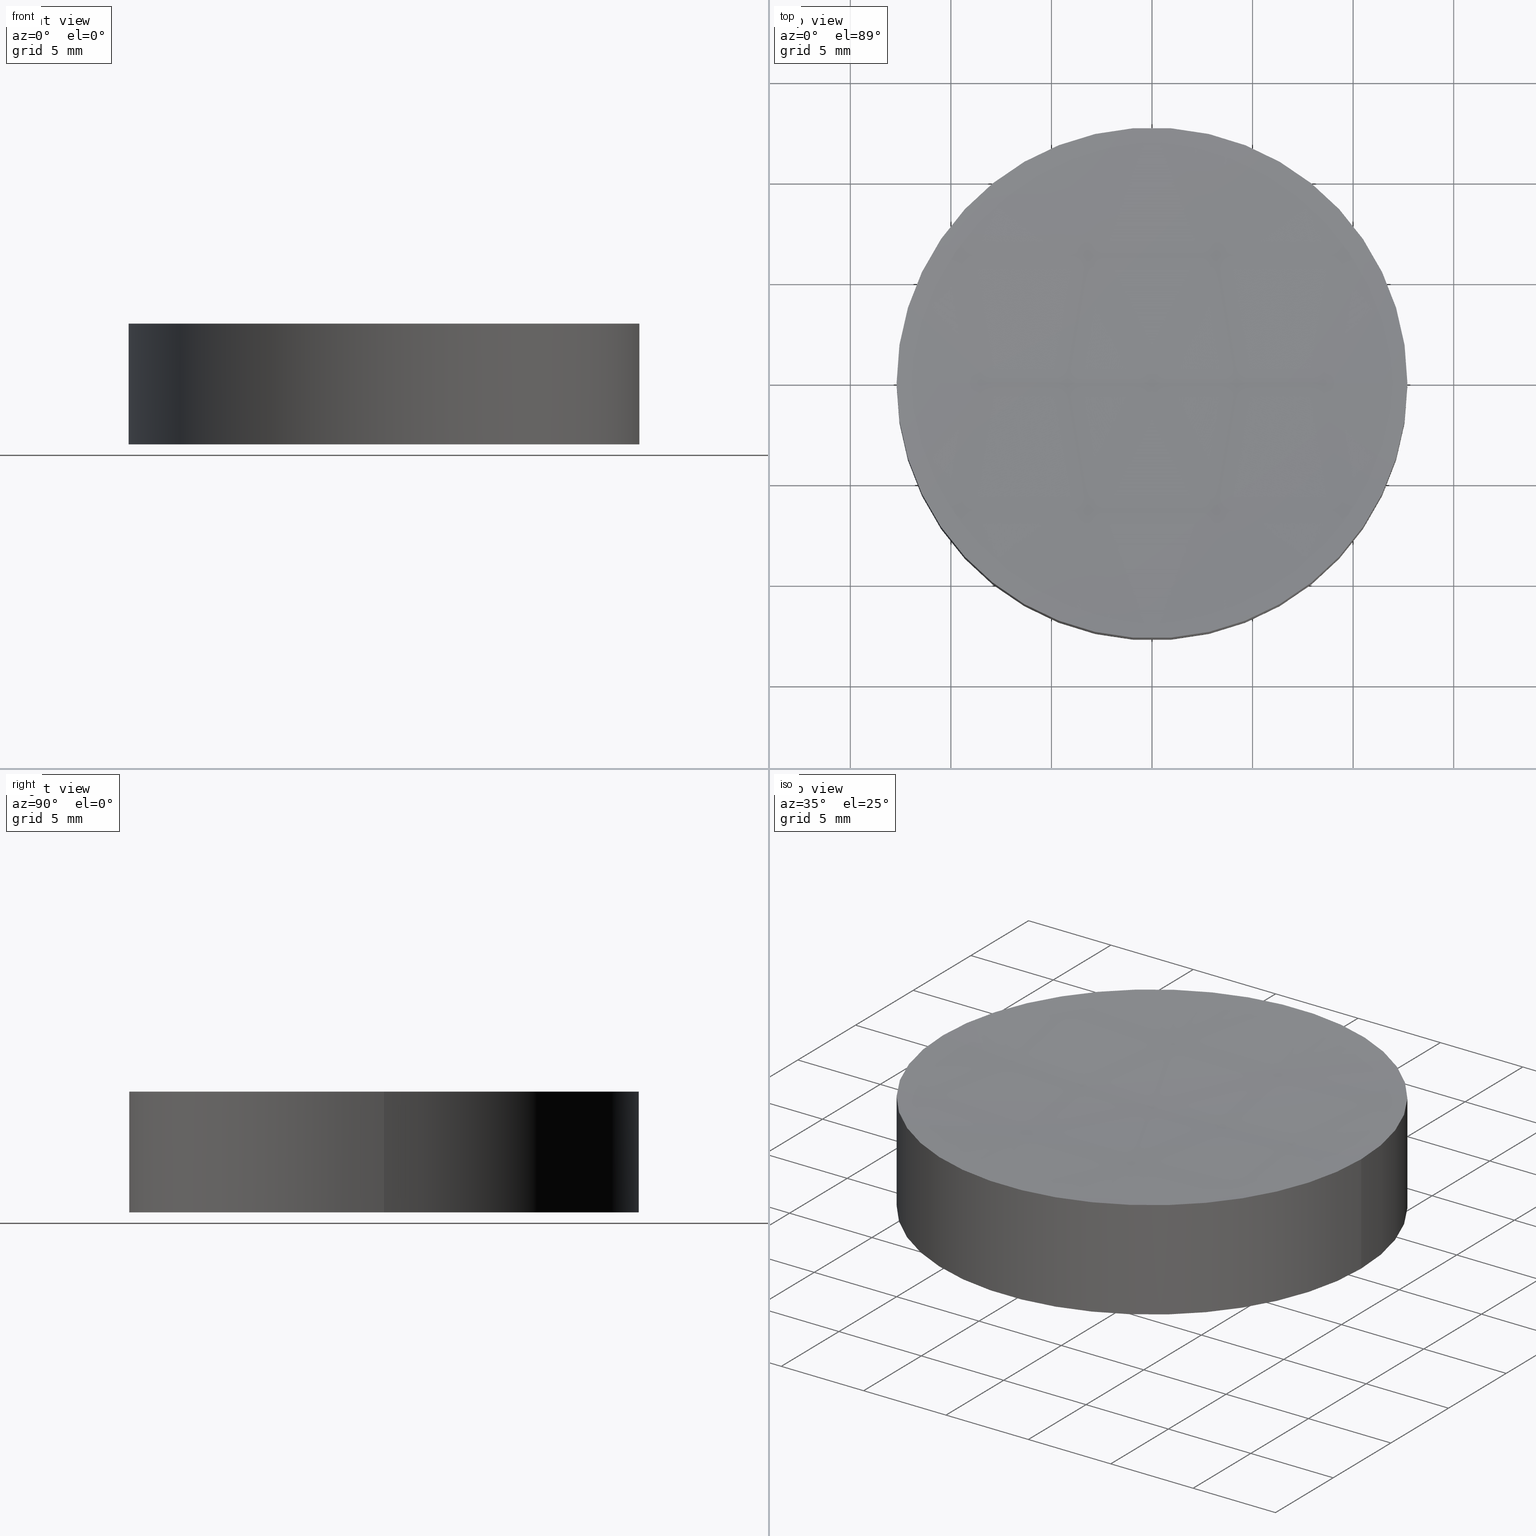
[diagram: canonical four-view strip — front | top / right | iso, engineering-drawing reading convention]
A machine part, canonical four-view strip (front | top / right | iso — engineering-drawing reading convention). The complete STEP part file that produces these views, byte-faithful:
ISO-10303-21;
HEADER;
FILE_DESCRIPTION (( 'STEP AP203' ),
    '1' );
FILE_NAME ('010-0203E_N-BK7_PCV_window.STEP',
    '2021-02-25T11:10:30',
    ( '' ),
    ( '' ),
    'SwSTEP 2.0',
    'SolidWorks 2019',
    '' );
FILE_SCHEMA (( 'CONFIG_CONTROL_DESIGN' ));
ENDSEC;

DATA;
#1 = ORIENTED_EDGE ( 'NONE', *, *, #110, .F. ) ;
#2 = AXIS2_PLACEMENT_3D ( 'NONE', #51, #128, #179 ) ;
#3 = DIRECTION ( 'NONE',  ( 0.000000000000000000, 0.000000000000000000, 1.000000000000000000 ) ) ;
#4 = PERSON_AND_ORGANIZATION_ROLE ( 'creator' ) ;
#5 = APPROVAL_PERSON_ORGANIZATION ( #43, #21, #26 ) ;
#6 = CARTESIAN_POINT ( 'NONE',  ( 3.000153270532683387E-14, 0.000000000000000000, 5.461399699052737589 ) ) ;
#7 = DATE_AND_TIME ( #149, #72 ) ;
#8 = APPROVAL_DATE_TIME ( #88, #184 ) ;
#9 = FACE_OUTER_BOUND ( 'NONE', #84, .T. ) ;
#10 = DATE_AND_TIME ( #182, #187 ) ;
#11 = DIRECTION ( 'NONE',  ( 1.000000000000000000, 0.000000000000000000, 0.000000000000000000 ) ) ;
#12 = PERSON_AND_ORGANIZATION_ROLE ( 'classification_officer' ) ;
#13 = DIRECTION ( 'NONE',  ( 1.224646799147353207E-16, -1.000000000000000000, 0.000000000000000000 ) ) ;
#14 = DESIGN_CONTEXT ( 'detailed design', #19, 'design' ) ;
#15 = EDGE_LOOP ( 'NONE', ( #80, #170, #96 ) ) ;
#16 = DIRECTION ( 'NONE',  ( 0.000000000000000000, 0.000000000000000000, 1.000000000000000000 ) ) ;
#17 = EDGE_CURVE ( 'NONE', #104, #27, #39, .T. ) ;
#18 = FACE_OUTER_BOUND ( 'NONE', #94, .T. ) ;
#19 = APPLICATION_CONTEXT ( 'configuration controlled 3d designs of mechanical parts and assemblies' ) ;
#20 = DIRECTION ( 'NONE',  ( 0.000000000000000000, 0.000000000000000000, 1.000000000000000000 ) ) ;
#21 = APPROVAL ( #29, 'UNSPECIFIED' ) ;
#22 = PERSON ( 'UNSPECIFIED', 'UNSPECIFIED', 'UNSPECIFIED', ('UNSPECIFIED'), ('UNSPECIFIED'), ('UNSPECIFIED') ) ;
#23 = SECURITY_CLASSIFICATION_LEVEL ( 'unclassified' ) ;
#24 = AXIS2_PLACEMENT_3D ( 'NONE', #162, #20, #85 ) ;
#25 = DIRECTION ( 'NONE',  ( 1.000000000000000000, 0.000000000000000000, 0.000000000000000000 ) ) ;
#26 = APPROVAL_ROLE ( '' ) ;
#27 = VERTEX_POINT ( 'NONE', #32 ) ;
#28 =( GEOMETRIC_REPRESENTATION_CONTEXT ( 3 ) GLOBAL_UNCERTAINTY_ASSIGNED_CONTEXT ( ( #55 ) ) GLOBAL_UNIT_ASSIGNED_CONTEXT ( ( #145, #52, #41 ) ) REPRESENTATION_CONTEXT ( 'NONE', 'WORKASPACE' ) );
#29 = APPROVAL_STATUS ( 'not_yet_approved' ) ;
#30 = CLOSED_SHELL ( 'NONE', ( #64, #144, #40, #177, #139 ) ) ;
#31 = DIRECTION ( 'NONE',  ( -0.000000000000000000, -0.000000000000000000, -1.000000000000000000 ) ) ;
#32 = CARTESIAN_POINT ( 'NONE',  ( 12.70000000000007923, 1.555301434917148096E-15, 6.000000000000005329 ) ) ;
#33 = APPROVAL ( #56, 'UNSPECIFIED' ) ;
#34 = EDGE_LOOP ( 'NONE', ( #1, #108, #140, #65 ) ) ;
#35 = AXIS2_PLACEMENT_3D ( 'NONE', #155, #13, #201 ) ;
#36 = APPROVAL_PERSON_ORGANIZATION ( #197, #33, #180 ) ;
#37 = AXIS2_PLACEMENT_3D ( 'NONE', #62, #136, #25 ) ;
#38 = EDGE_CURVE ( 'NONE', #27, #157, #111, .T. ) ;
#39 = CIRCLE ( 'NONE', #141, 12.70000000000005613 ) ;
#40 = ADVANCED_FACE ( 'NONE', ( #68 ), #48, .T. ) ;
#41 =( NAMED_UNIT ( * ) SI_UNIT ( $, .STERADIAN. ) SOLID_ANGLE_UNIT ( ) );
#42 = ORIENTED_EDGE ( 'NONE', *, *, #38, .F. ) ;
#43 = PERSON_AND_ORGANIZATION ( #22, #86 ) ;
#44 = VERTEX_POINT ( 'NONE', #159 ) ;
#45 = DATE_AND_TIME ( #175, #193 ) ;
#46 = DIRECTION ( 'NONE',  ( 1.000000000000000000, 0.000000000000000000, 0.000000000000000000 ) ) ;
#47 = EDGE_CURVE ( 'NONE', #104, #157, #49, .T. ) ;
#48 = CYLINDRICAL_SURFACE ( 'NONE', #132, 12.69999999999999929 ) ;
#49 = CIRCLE ( 'NONE', #35, 150.0000000000000000 ) ;
#50 = CIRCLE ( 'NONE', #195, 12.69999999999999929 ) ;
#51 = CARTESIAN_POINT ( 'NONE',  ( 2.081668171172168513E-14, 0.000000000000000000, 6.000000000000005329 ) ) ;
#52 =( NAMED_UNIT ( * ) PLANE_ANGLE_UNIT ( ) SI_UNIT ( $, .RADIAN. ) );
#53 = EDGE_CURVE ( 'NONE', #44, #158, #122, .T. ) ;
#54 = AXIS2_PLACEMENT_3D ( 'NONE', #95, #121, #16 ) ;
#55 = UNCERTAINTY_MEASURE_WITH_UNIT (LENGTH_MEASURE( 1.000000000000000082E-05 ), #145, 'distance_accuracy_value', 'NONE');
#56 = APPROVAL_STATUS ( 'not_yet_approved' ) ;
#57 = CYLINDRICAL_SURFACE ( 'NONE', #148, 12.69999999999999929 ) ;
#58 = APPROVAL_DATE_TIME ( #199, #33 ) ;
#59 = DIRECTION ( 'NONE',  ( 0.000000000000000000, -1.000000000000000000, -0.000000000000000000 ) ) ;
#60 = PERSON_AND_ORGANIZATION ( #22, #86 ) ;
#61 = CARTESIAN_POINT ( 'NONE',  ( -12.69999999999999929, 0.000000000000000000, 6.000000000000000000 ) ) ;
#62 = CARTESIAN_POINT ( 'NONE',  ( 2.081668171172168513E-14, 0.000000000000000000, 155.4613996990527198 ) ) ;
#63 = DATE_TIME_ROLE ( 'classification_date' ) ;
#64 = ADVANCED_FACE ( 'NONE', ( #18 ), #102, .F. ) ;
#65 = ORIENTED_EDGE ( 'NONE', *, *, #114, .T. ) ;
#66 = CC_DESIGN_APPROVAL ( #33, ( #160 ) ) ;
#67 = CIRCLE ( 'NONE', #2, 12.70000000000005613 ) ;
#68 = FACE_OUTER_BOUND ( 'NONE', #34, .T. ) ;
#69 = MANIFOLD_SOLID_BREP ( 'Cut-Revolve1', #30 ) ;
#70 = CC_DESIGN_DATE_AND_TIME_ASSIGNMENT ( #7, #130, ( #100 ) ) ;
#71 = CARTESIAN_POINT ( 'NONE',  ( -12.69999999999999929, 0.000000000000000000, 0.000000000000000000 ) ) ;
#72 = LOCAL_TIME ( 13, 10, 30.00000000000000000, #115 ) ;
#73 = ADVANCED_BREP_SHAPE_REPRESENTATION ( '010-0203E_N-BK7_PCV_window', ( #69, #126 ), #28 ) ;
#74 = CALENDAR_DATE ( 2021, 25, 2 ) ;
#75 = COORDINATED_UNIVERSAL_TIME_OFFSET ( 2, 0, .AHEAD. ) ;
#76 = DIRECTION ( 'NONE',  ( -0.000000000000000000, -0.000000000000000000, -1.000000000000000000 ) ) ;
#77 = PERSON_AND_ORGANIZATION_ROLE ( 'design_owner' ) ;
#78 = DIRECTION ( 'NONE',  ( -0.000000000000000000, -0.000000000000000000, -1.000000000000000000 ) ) ;
#79 = AXIS2_PLACEMENT_3D ( 'NONE', #190, #3, #174 ) ;
#80 = ORIENTED_EDGE ( 'NONE', *, *, #47, .F. ) ;
#81 = ORIENTED_EDGE ( 'NONE', *, *, #97, .F. ) ;
#82 = ORIENTED_EDGE ( 'NONE', *, *, #17, .F. ) ;
#83 = LOCAL_TIME ( 13, 10, 30.00000000000000000, #75 ) ;
#84 = EDGE_LOOP ( 'NONE', ( #106, #173, #119, #81 ) ) ;
#85 = DIRECTION ( 'NONE',  ( 1.000000000000000000, 0.000000000000000000, -0.000000000000000000 ) ) ;
#86 = ORGANIZATION ( 'UNSPECIFIED', 'UNSPECIFIED', '' ) ;
#87 = AXIS2_PLACEMENT_3D ( 'NONE', #116, #59, #181 ) ;
#88 = DATE_AND_TIME ( #74, #164 ) ;
#89 = CARTESIAN_POINT ( 'NONE',  ( 0.000000000000000000, 0.000000000000000000, 0.000000000000000000 ) ) ;
#90 = LINE ( 'NONE', #61, #107 ) ;
#91 = CARTESIAN_POINT ( 'NONE',  ( 0.000000000000000000, 0.000000000000000000, 0.000000000000000000 ) ) ;
#92 = ORIENTED_EDGE ( 'NONE', *, *, #47, .T. ) ;
#93 = SPHERICAL_SURFACE ( 'NONE', #87, 150.0000000000000000 ) ;
#94 = EDGE_LOOP ( 'NONE', ( #82, #92, #42 ) ) ;
#95 = CARTESIAN_POINT ( 'NONE',  ( 2.081668171172168513E-14, 0.000000000000000000, 155.4613996990527198 ) ) ;
#96 = ORIENTED_EDGE ( 'NONE', *, *, #38, .T. ) ;
#97 = EDGE_CURVE ( 'NONE', #104, #158, #90, .T. ) ;
#98 = CC_DESIGN_APPROVAL ( #21, ( #176 ) ) ;
#99 = PRODUCT_DEFINITION_SHAPE ( 'NONE', 'NONE',  #100 ) ;
#100 = PRODUCT_DEFINITION ( 'UNKNOWN', '', #160, #14 ) ;
#101 = CARTESIAN_POINT ( 'NONE',  ( 0.000000000000000000, 0.000000000000000000, 6.000000000000000000 ) ) ;
#102 = SPHERICAL_SURFACE ( 'NONE', #37, 150.0000000000000000 ) ;
#103 = SHAPE_DEFINITION_REPRESENTATION ( #99, #73 ) ;
#104 = VERTEX_POINT ( 'NONE', #186 ) ;
#105 = LINE ( 'NONE', #198, #178 ) ;
#106 = ORIENTED_EDGE ( 'NONE', *, *, #17, .T. ) ;
#107 = VECTOR ( 'NONE', #78, 1000.000000000000000 ) ;
#108 = ORIENTED_EDGE ( 'NONE', *, *, #171, .T. ) ;
#109 = DIRECTION ( 'NONE',  ( -1.000000000000000000, 0.000000000000000000, 0.000000000000000000 ) ) ;
#110 = EDGE_CURVE ( 'NONE', #27, #44, #105, .T. ) ;
#111 = CIRCLE ( 'NONE', #54, 150.0000000000000000 ) ;
#112 = PERSON_AND_ORGANIZATION ( #22, #86 ) ;
#113 = PERSON_AND_ORGANIZATION_ROLE ( 'design_supplier' ) ;
#114 = EDGE_CURVE ( 'NONE', #158, #44, #50, .T. ) ;
#115 = COORDINATED_UNIVERSAL_TIME_OFFSET ( 2, 0, .AHEAD. ) ;
#116 = CARTESIAN_POINT ( 'NONE',  ( 2.081668171172168513E-14, 0.000000000000000000, 155.4613996990527198 ) ) ;
#117 = PERSON_AND_ORGANIZATION ( #22, #86 ) ;
#118 = APPROVAL_STATUS ( 'not_yet_approved' ) ;
#119 = ORIENTED_EDGE ( 'NONE', *, *, #53, .T. ) ;
#120 = DIRECTION ( 'NONE',  ( 1.000000000000000000, 0.000000000000000000, 0.000000000000000000 ) ) ;
#121 = DIRECTION ( 'NONE',  ( 0.000000000000000000, 1.000000000000000000, -0.000000000000000000 ) ) ;
#122 = CIRCLE ( 'NONE', #79, 12.69999999999999929 ) ;
#123 = CC_DESIGN_PERSON_AND_ORGANIZATION_ASSIGNMENT ( #60, #77, ( #125 ) ) ;
#124 = CC_DESIGN_DATE_AND_TIME_ASSIGNMENT ( #45, #63, ( #176 ) ) ;
#125 = PRODUCT ( '010-0203E_N-BK7_PCV_window', '010-0203E_N-BK7_PCV_window', '', ( #131 ) ) ;
#126 = AXIS2_PLACEMENT_3D ( 'NONE', #91, #165, #11 ) ;
#127 = CC_DESIGN_PERSON_AND_ORGANIZATION_ASSIGNMENT ( #112, #4, ( #160 ) ) ;
#128 = DIRECTION ( 'NONE',  ( -0.000000000000000000, -0.000000000000000000, -1.000000000000000000 ) ) ;
#129 = PERSON_AND_ORGANIZATION ( #22, #86 ) ;
#130 = DATE_TIME_ROLE ( 'creation_date' ) ;
#131 = MECHANICAL_CONTEXT ( 'NONE', #142, 'mechanical' ) ;
#132 = AXIS2_PLACEMENT_3D ( 'NONE', #137, #168, #109 ) ;
#133 = DIRECTION ( 'NONE',  ( -0.000000000000000000, -0.000000000000000000, -1.000000000000000000 ) ) ;
#134 = COORDINATED_UNIVERSAL_TIME_OFFSET ( 2, 0, .AHEAD. ) ;
#135 = ORIENTED_EDGE ( 'NONE', *, *, #114, .F. ) ;
#136 = DIRECTION ( 'NONE',  ( 0.000000000000000000, -1.000000000000000000, -0.000000000000000000 ) ) ;
#137 = CARTESIAN_POINT ( 'NONE',  ( 0.000000000000000000, 0.000000000000000000, 6.000000000000000000 ) ) ;
#138 = APPLICATION_PROTOCOL_DEFINITION ( 'international standard', 'config_control_design', 1994, #19 ) ;
#139 = ADVANCED_FACE ( 'NONE', ( #172 ), #93, .F. ) ;
#140 = ORIENTED_EDGE ( 'NONE', *, *, #97, .T. ) ;
#141 = AXIS2_PLACEMENT_3D ( 'NONE', #183, #31, #46 ) ;
#142 = APPLICATION_CONTEXT ( 'configuration controlled 3d designs of mechanical parts and assemblies' ) ;
#143 = PERSON_AND_ORGANIZATION ( #22, #86 ) ;
#144 = ADVANCED_FACE ( 'NONE', ( #9 ), #57, .T. ) ;
#145 =( LENGTH_UNIT ( ) NAMED_UNIT ( * ) SI_UNIT ( .MILLI., .METRE. ) );
#146 = FACE_OUTER_BOUND ( 'NONE', #188, .T. ) ;
#147 = APPROVAL_PERSON_ORGANIZATION ( #152, #184, #167 ) ;
#148 = AXIS2_PLACEMENT_3D ( 'NONE', #101, #76, #151 ) ;
#149 = CALENDAR_DATE ( 2021, 25, 2 ) ;
#150 = CALENDAR_DATE ( 2021, 25, 2 ) ;
#151 = DIRECTION ( 'NONE',  ( -1.000000000000000000, 0.000000000000000000, 0.000000000000000000 ) ) ;
#152 = PERSON_AND_ORGANIZATION ( #22, #86 ) ;
#153 = COORDINATED_UNIVERSAL_TIME_OFFSET ( 2, 0, .AHEAD. ) ;
#154 = CC_DESIGN_SECURITY_CLASSIFICATION ( #176, ( #160 ) ) ;
#155 = CARTESIAN_POINT ( 'NONE',  ( 2.081668171172168513E-14, 0.000000000000000000, 155.4613996990527198 ) ) ;
#156 = APPLICATION_PROTOCOL_DEFINITION ( 'international standard', 'config_control_design', 1994, #142 ) ;
#157 = VERTEX_POINT ( 'NONE', #6 ) ;
#158 = VERTEX_POINT ( 'NONE', #71 ) ;
#159 = CARTESIAN_POINT ( 'NONE',  ( 12.69999999999999929, 1.555301434917138433E-15, 0.000000000000000000 ) ) ;
#160 = PRODUCT_DEFINITION_FORMATION_WITH_SPECIFIED_SOURCE ( 'ANY', '', #125, .NOT_KNOWN. ) ;
#161 = CC_DESIGN_PERSON_AND_ORGANIZATION_ASSIGNMENT ( #117, #12, ( #176 ) ) ;
#162 = CARTESIAN_POINT ( 'NONE',  ( 0.000000000000000000, 0.000000000000000000, 0.000000000000000000 ) ) ;
#163 = PLANE ( 'NONE',  #24 ) ;
#164 = LOCAL_TIME ( 13, 10, 30.00000000000000000, #153 ) ;
#165 = DIRECTION ( 'NONE',  ( 0.000000000000000000, 0.000000000000000000, 1.000000000000000000 ) ) ;
#166 = PERSON_AND_ORGANIZATION_ROLE ( 'creator' ) ;
#167 = APPROVAL_ROLE ( '' ) ;
#168 = DIRECTION ( 'NONE',  ( -0.000000000000000000, -0.000000000000000000, -1.000000000000000000 ) ) ;
#169 = COORDINATED_UNIVERSAL_TIME_OFFSET ( 2, 0, .AHEAD. ) ;
#170 = ORIENTED_EDGE ( 'NONE', *, *, #171, .F. ) ;
#171 = EDGE_CURVE ( 'NONE', #27, #104, #67, .T. ) ;
#172 = FACE_OUTER_BOUND ( 'NONE', #15, .T. ) ;
#173 = ORIENTED_EDGE ( 'NONE', *, *, #110, .T. ) ;
#174 = DIRECTION ( 'NONE',  ( 1.000000000000000000, 0.000000000000000000, 0.000000000000000000 ) ) ;
#175 = CALENDAR_DATE ( 2021, 25, 2 ) ;
#176 = SECURITY_CLASSIFICATION ( '', '', #23 ) ;
#177 = ADVANCED_FACE ( 'NONE', ( #146 ), #163, .F. ) ;
#178 = VECTOR ( 'NONE', #133, 1000.000000000000000 ) ;
#179 = DIRECTION ( 'NONE',  ( 1.000000000000000000, 0.000000000000000000, 0.000000000000000000 ) ) ;
#180 = APPROVAL_ROLE ( '' ) ;
#181 = DIRECTION ( 'NONE',  ( 1.000000000000000000, 0.000000000000000000, 0.000000000000000000 ) ) ;
#182 = CALENDAR_DATE ( 2021, 25, 2 ) ;
#183 = CARTESIAN_POINT ( 'NONE',  ( 2.081668171172168513E-14, 0.000000000000000000, 6.000000000000005329 ) ) ;
#184 = APPROVAL ( #118, 'UNSPECIFIED' ) ;
#185 = ORIENTED_EDGE ( 'NONE', *, *, #53, .F. ) ;
#186 = CARTESIAN_POINT ( 'NONE',  ( -12.70000000000003659, 0.000000000000000000, 6.000000000000005329 ) ) ;
#187 = LOCAL_TIME ( 13, 10, 30.00000000000000000, #134 ) ;
#188 = EDGE_LOOP ( 'NONE', ( #135, #185 ) ) ;
#189 = APPROVAL_DATE_TIME ( #10, #21 ) ;
#190 = CARTESIAN_POINT ( 'NONE',  ( 0.000000000000000000, 0.000000000000000000, 0.000000000000000000 ) ) ;
#191 = PRODUCT_RELATED_PRODUCT_CATEGORY ( 'detail', '', ( #125 ) ) ;
#192 = CC_DESIGN_PERSON_AND_ORGANIZATION_ASSIGNMENT ( #129, #166, ( #100 ) ) ;
#193 = LOCAL_TIME ( 13, 10, 30.00000000000000000, #169 ) ;
#194 = CC_DESIGN_APPROVAL ( #184, ( #100 ) ) ;
#195 = AXIS2_PLACEMENT_3D ( 'NONE', #89, #200, #120 ) ;
#196 = CC_DESIGN_PERSON_AND_ORGANIZATION_ASSIGNMENT ( #143, #113, ( #160 ) ) ;
#197 = PERSON_AND_ORGANIZATION ( #22, #86 ) ;
#198 = CARTESIAN_POINT ( 'NONE',  ( 12.69999999999999929, 1.555301434917138433E-15, 6.000000000000000000 ) ) ;
#199 = DATE_AND_TIME ( #150, #83 ) ;
#200 = DIRECTION ( 'NONE',  ( 0.000000000000000000, 0.000000000000000000, 1.000000000000000000 ) ) ;
#201 = DIRECTION ( 'NONE',  ( 1.000000000000000000, 1.224646799147353207E-16, 0.000000000000000000 ) ) ;
ENDSEC;
END-ISO-10303-21;
